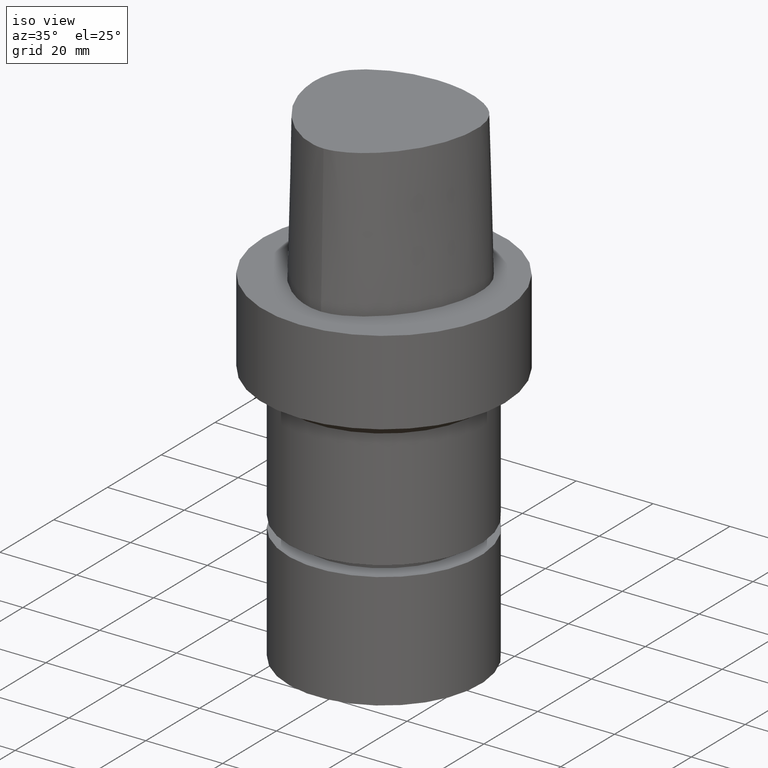
[diagram: clean part render]
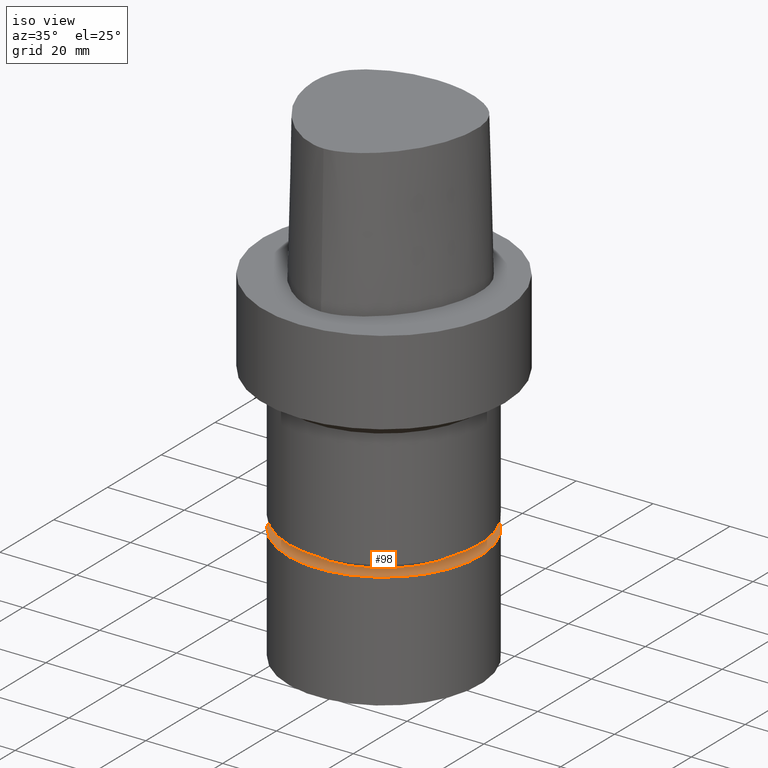
[diagram: same view with one face highlighted and labeled with its STEP entity id]
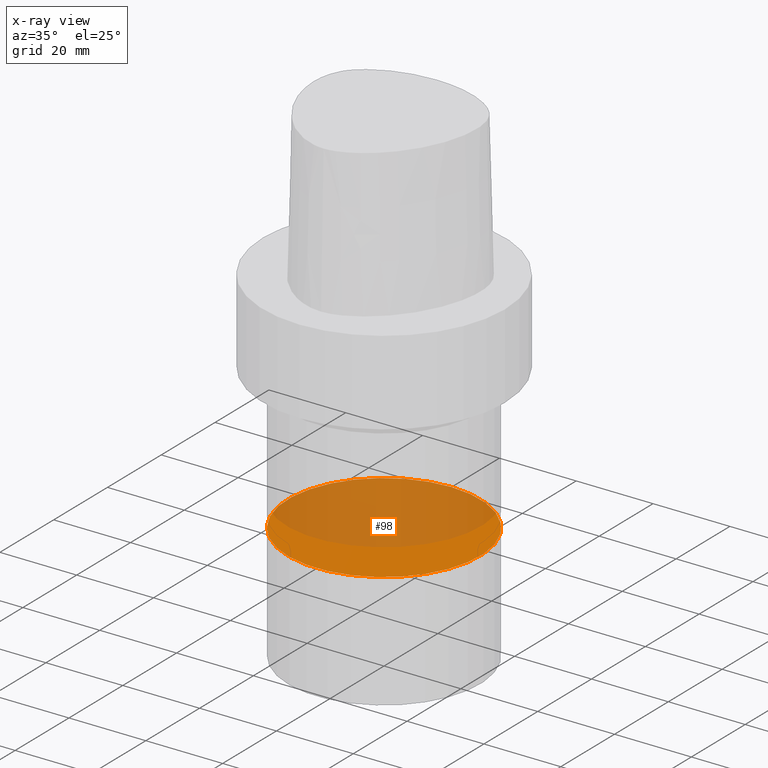
[diagram: x-ray of the same camera — body ghosted, the highlighted face saturated]
A machine part, iso view. The second image highlights one B-rep face of the part: STEP entity #98.
The next image is the same camera in x-ray: the body ghosted, the highlighted face saturated — about 63% of this face is hidden behind the body in this view.
In plain terms, the highlighted planar face has unit normal (-0, -0, 1).
Its self-contained STEP definition (entity closure, byte-faithful):
#88=EDGE_CURVE('Unnamed[1]',#217,#217,#218,.T.);
#98=ADVANCED_FACE('Unnamed[1]',(#232),#233,.T.);
#217=VERTEX_POINT('',#397);
#218=CIRCLE('',#398,25.0);
#232=FACE_OUTER_BOUND('',#489,.T.);
#233=PLANE('',#490);
#397=CARTESIAN_POINT('',(3.66169392945059E-015,25.0,-59.8));
#398=AXIS2_PLACEMENT_3D('',#761,#762,#763);
#489=EDGE_LOOP('',(#772));
#490=AXIS2_PLACEMENT_3D('',#773,#774,#775);
#761=CARTESIAN_POINT('',(3.66169392945059E-015,7.32338785890117E-015,-59.8));
#762=DIRECTION('',(6.12323399573677E-017,1.22464679914735E-016,-1.0));
#763=DIRECTION('',(-1.23259516440783E-032,1.0,1.22464679914735E-016));
#772=ORIENTED_EDGE('',*,*,#88,.F.);
#773=CARTESIAN_POINT('',(3.66169392945059E-015,12.5,-59.8));
#774=DIRECTION('',(-6.12323399573677E-017,-1.22464679914735E-016,1.0));
#775=DIRECTION('',(1.23259516440783E-032,-1.0,-1.22464679914735E-016));